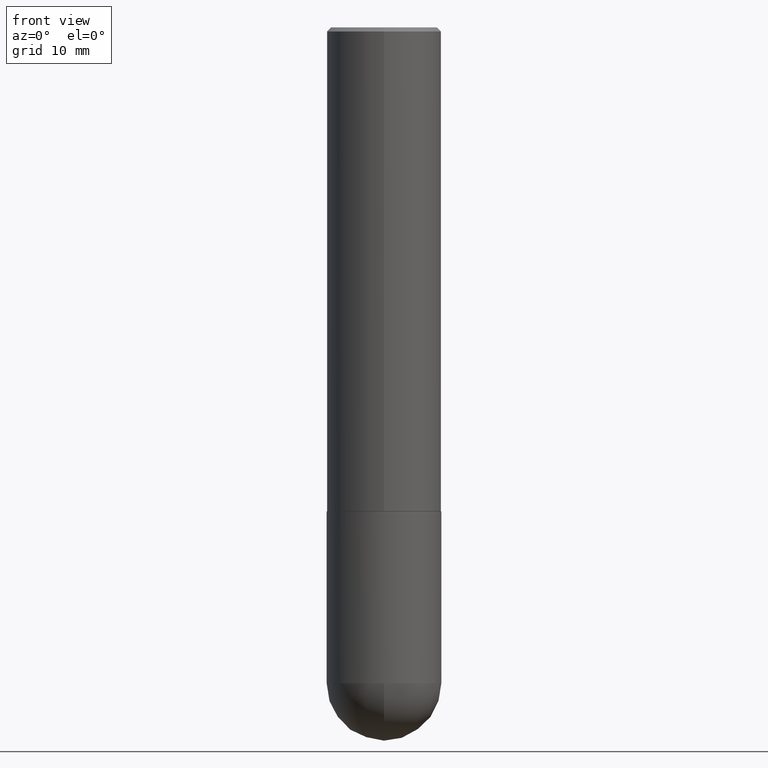
[diagram: clean part render]
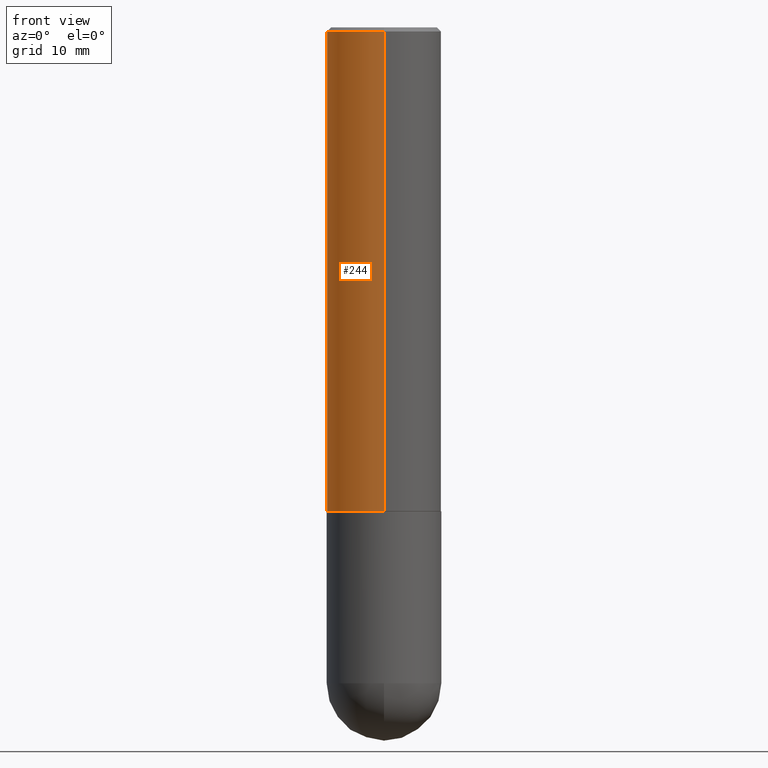
[diagram: same view with one face highlighted and labeled with its STEP entity id]
A machine part, front view. The second image highlights one B-rep face of the part: STEP entity #244.
In plain terms, the highlighted cylindrical surface (partial cylindrical patch) has radius 7.1438 mm, axis along (-0, 0, 1).
Its self-contained STEP definition (entity closure, byte-faithful):
#8 = CARTESIAN_POINT ( 'NONE',  ( 4.891942156115939858E-31, -6.981524113867461777E-17, -0.02000000000000006287 ) ) ;
#9 = VECTOR ( 'NONE', #208, 39.37007874015748143 ) ;
#14 = DIRECTION ( 'NONE',  ( -6.982962677686266711E-15, -1.000000000000000000, 3.490694658571003593E-15 ) ) ;
#28 = VECTOR ( 'NONE', #81, 39.37007874015748143 ) ;
#52 = CYLINDRICAL_SURFACE ( 'NONE', #195, 0.2812500000000001110 ) ;
#55 = VERTEX_POINT ( 'NONE', #292 ) ;
#56 = CARTESIAN_POINT ( 'NONE',  ( -1.963958253099263301E-15, -0.2812500000000001110, 9.817768285126090044E-16 ) ) ;
#64 = EDGE_CURVE ( 'NONE', #55, #90, #364, .T. ) ;
#77 = CARTESIAN_POINT ( 'NONE',  ( 1.998401444325312144E-15, 0.2812499999999919509, -2.374000000000000554 ) ) ;
#81 = DIRECTION ( 'NONE',  ( -2.445971078057962310E-29, 3.490762056933720116E-15, 1.000000000000000000 ) ) ;
#90 = VERTEX_POINT ( 'NONE', #301 ) ;
#92 = ORIENTED_EDGE ( 'NONE', *, *, #64, .F. ) ;
#98 = DIRECTION ( 'NONE',  ( -6.982962677686265133E-15, -1.000000000000000000, 3.885294924322504533E-15 ) ) ;
#101 = CIRCLE ( 'NONE', #214, 0.2812500000000002220 ) ;
#133 = DIRECTION ( 'NONE',  ( -2.445971078057962310E-29, 3.490762056933719721E-15, 1.000000000000000000 ) ) ;
#141 = CARTESIAN_POINT ( 'NONE',  ( 1.998401444325282167E-15, 0.2812500000000001110, -9.817768285126090044E-16 ) ) ;
#148 = ORIENTED_EDGE ( 'NONE', *, *, #317, .T. ) ;
#154 = ORIENTED_EDGE ( 'NONE', *, *, #203, .T. ) ;
#195 = AXIS2_PLACEMENT_3D ( 'NONE', #268, #341, #239 ) ;
#203 = EDGE_CURVE ( 'NONE', #319, #303, #101, .T. ) ;
#204 = LINE ( 'NONE', #141, #9 ) ;
#208 = DIRECTION ( 'NONE',  ( -2.445971078057962310E-29, 3.490762056933720116E-15, 1.000000000000000000 ) ) ;
#214 = AXIS2_PLACEMENT_3D ( 'NONE', #237, #133, #98 ) ;
#215 = FACE_OUTER_BOUND ( 'NONE', #353, .T. ) ;
#237 = CARTESIAN_POINT ( 'NONE',  ( 5.806735339309601077E-29, -8.287069123160647874E-15, -2.373999999999999222 ) ) ;
#239 = DIRECTION ( 'NONE',  ( -6.982962677686266711E-15, -1.000000000000000000, 3.490762056933719721E-15 ) ) ;
#244 = ADVANCED_FACE ( 'NONE', ( #215 ), #52, .T. ) ;
#260 = DIRECTION ( 'NONE',  ( -2.445971078057962310E-29, 3.490762056933719721E-15, 1.000000000000000000 ) ) ;
#266 = EDGE_CURVE ( 'NONE', #319, #55, #204, .T. ) ;
#268 = CARTESIAN_POINT ( 'NONE',  ( 0.000000000000000000, 0.000000000000000000, 0.000000000000000000 ) ) ;
#292 = CARTESIAN_POINT ( 'NONE',  ( 1.963958253099262512E-15, 0.2812499999999998890, -0.02000000000000104472 ) ) ;
#301 = CARTESIAN_POINT ( 'NONE',  ( -1.929515061873242463E-15, -0.2812500000000000555, -0.01999999999999908101 ) ) ;
#303 = VERTEX_POINT ( 'NONE', #396 ) ;
#306 = ORIENTED_EDGE ( 'NONE', *, *, #266, .F. ) ;
#317 = EDGE_CURVE ( 'NONE', #303, #90, #336, .T. ) ;
#319 = VERTEX_POINT ( 'NONE', #77 ) ;
#336 = LINE ( 'NONE', #56, #28 ) ;
#341 = DIRECTION ( 'NONE',  ( -2.445971078057962310E-29, 3.490762056933719721E-15, 1.000000000000000000 ) ) ;
#353 = EDGE_LOOP ( 'NONE', ( #306, #154, #148, #92 ) ) ;
#364 = CIRCLE ( 'NONE', #391, 0.2812499999999999445 ) ;
#391 = AXIS2_PLACEMENT_3D ( 'NONE', #8, #260, #14 ) ;
#396 = CARTESIAN_POINT ( 'NONE',  ( -1.963958253099205714E-15, -0.2812500000000085487, -2.373999999999998334 ) ) ;